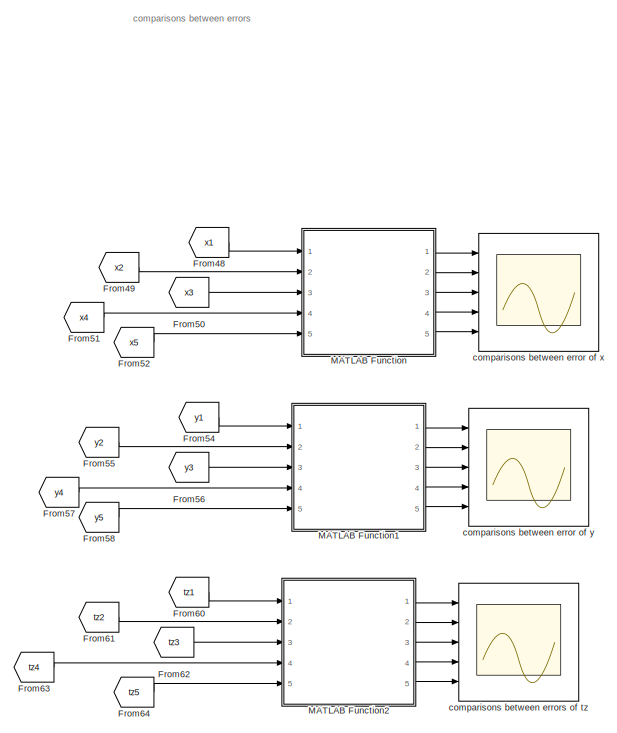
[diagram: root canvas - part 1/5, top left region]
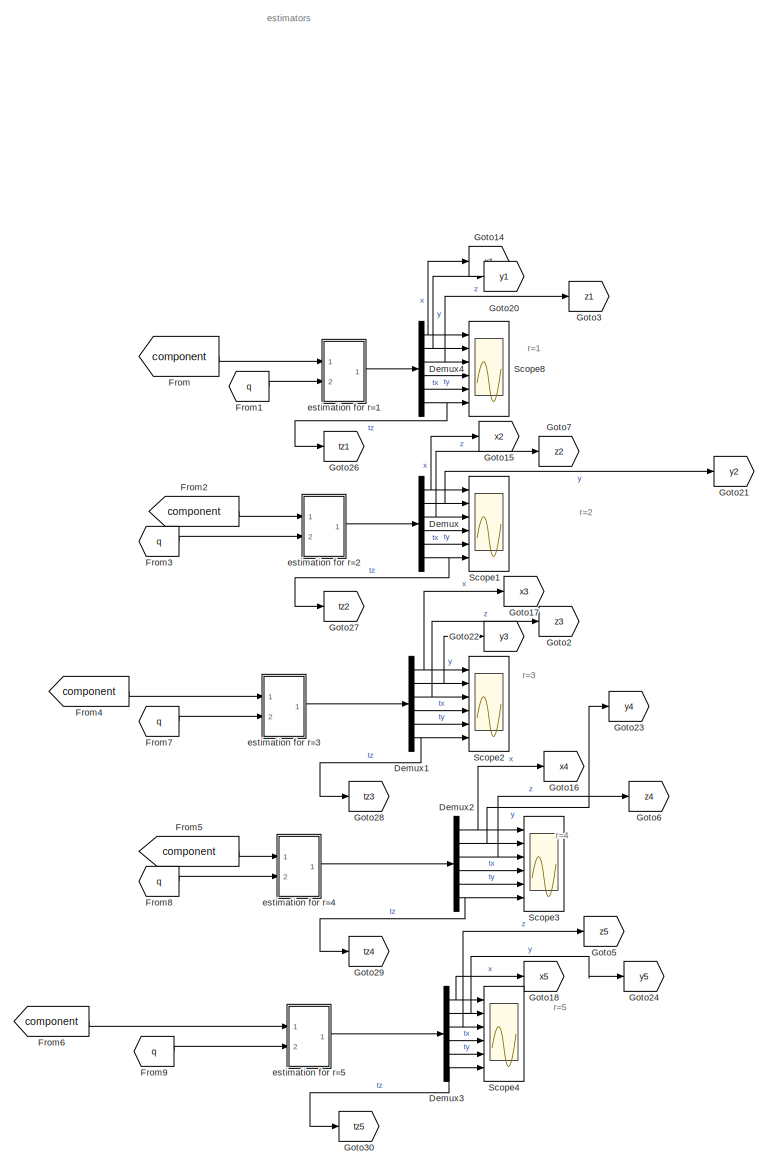
[diagram: root canvas - part 2/5, center side, full height]
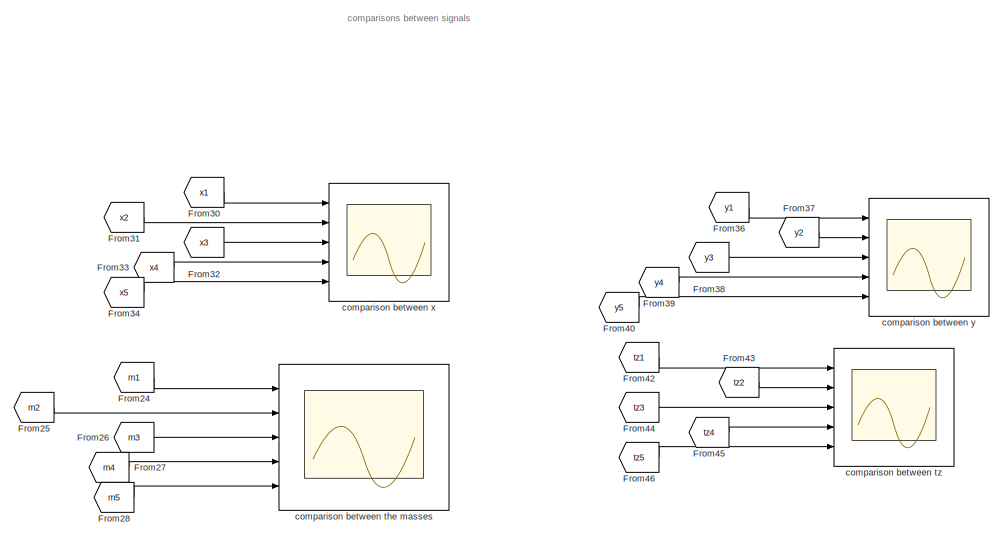
[diagram: root canvas - part 3/5, top center region]
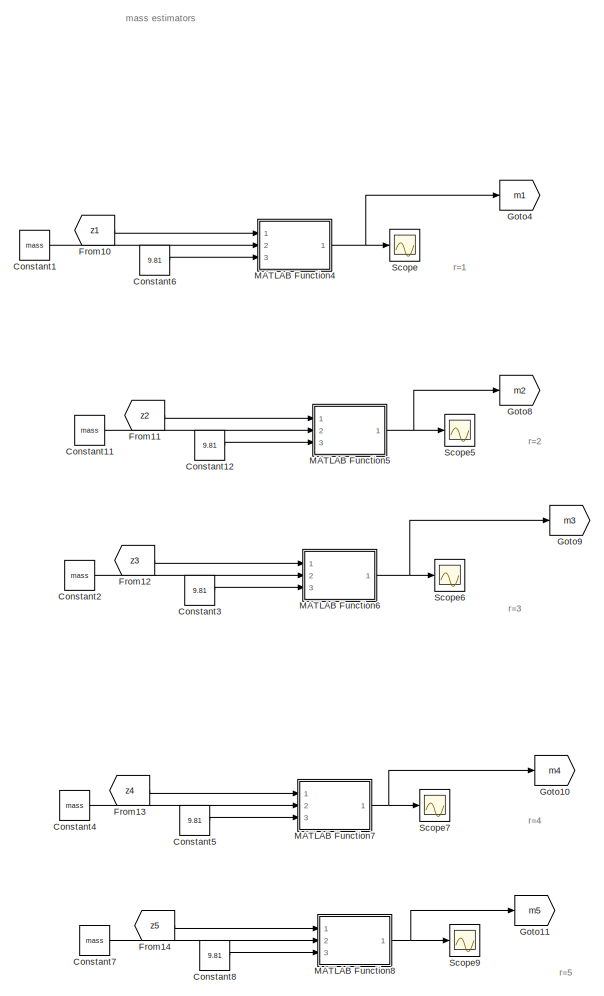
[diagram: root canvas - part 4/5, right side, full height]
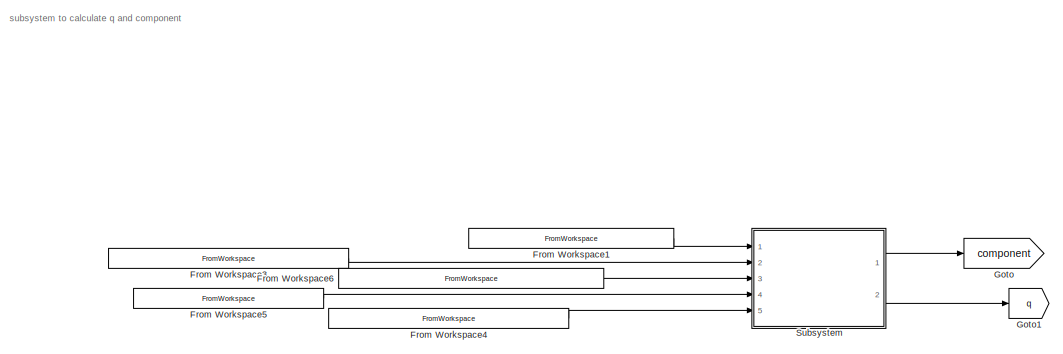
[diagram: root canvas - part 5/5, bottom center region]
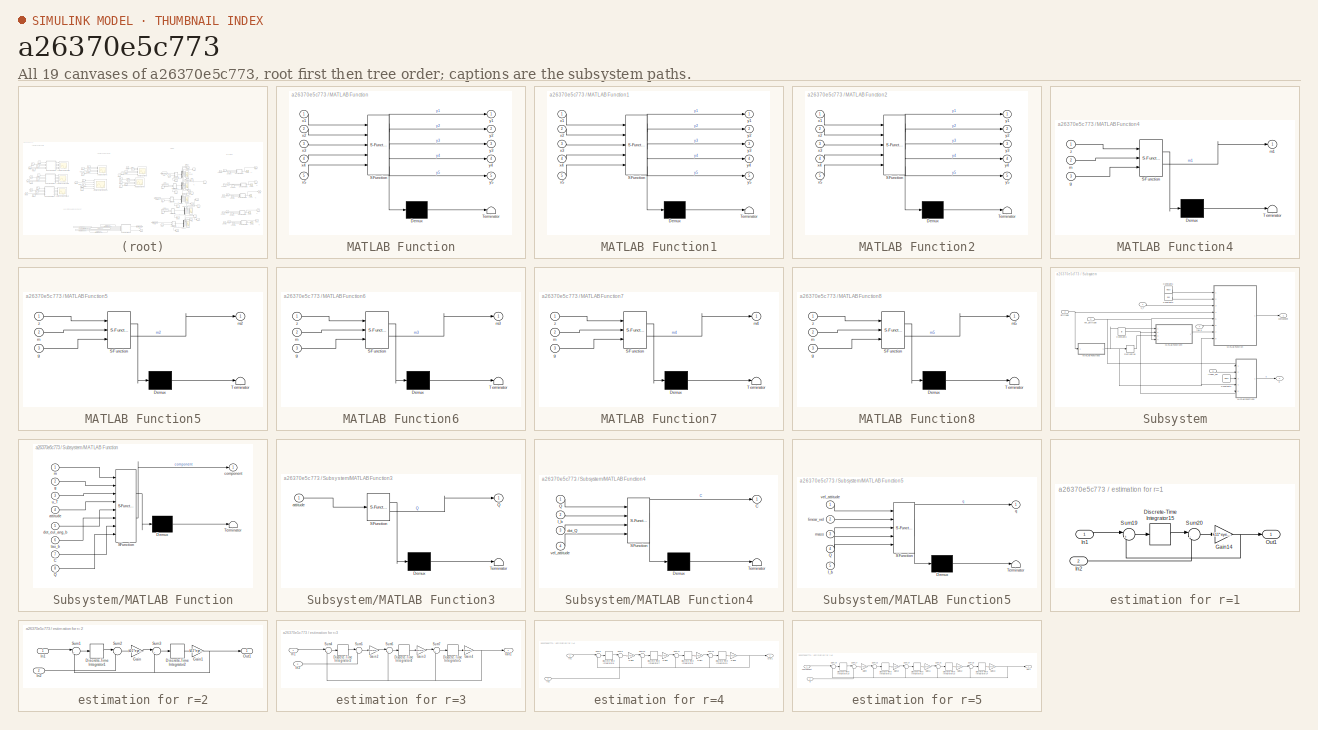
[diagram: thumbnail index - all 19 canvases of the model, root first then tree order]
MODEL slx_a26370e5c773
KIND model
CONFIG AbsTol = auto
CONFIG EnableMultiTasking = off
CONFIG FixedStep = auto
CONFIG MaxStep = auto
CONFIG MinStep = auto
CONFIG RelTol = 1e-3
CONFIG SampleTimeConstraint = Unconstrained
CONFIG SolverName = VariableStepAuto
CONFIG StartTime = 0.0
CONFIG StopTime = 30
BLOCK [Constant] Constant1
  Value = mass
BLOCK [Constant] Constant11
  Value = mass
BLOCK [Constant] Constant12
  Value = 9.81
BLOCK [Constant] Constant2
  Value = mass
BLOCK [Constant] Constant3
  Value = 9.81
BLOCK [Constant] Constant4
  Value = mass
BLOCK [Constant] Constant5
  Value = 9.81
BLOCK [Constant] Constant6
  Value = 9.81
BLOCK [Constant] Constant7
  Value = mass
BLOCK [Constant] Constant8
  Value = 9.81
BLOCK [Demux] Demux
  Outputs = 6
  Ports = [1, 6]
BLOCK [Demux] Demux1
  Outputs = 6
  Ports = [1, 6]
BLOCK [Demux] Demux2
  Outputs = 6
  Ports = [1, 6]
BLOCK [Demux] Demux3
  Outputs = 6
  Ports = [1, 6]
BLOCK [Demux] Demux4
  Outputs = 6
  Ports = [1, 6]
BLOCK [From] From
  GotoTag = component
BLOCK [FromWorkspace] From Workspace1
  SampleTime = 0.001
  VariableName = thrust
BLOCK [FromWorkspace] From Workspace3
  SampleTime = 0.001
  VariableName = attitude
BLOCK [FromWorkspace] From Workspace4
  SampleTime = 0.001
  VariableName = linear_vel
BLOCK [FromWorkspace] From Workspace5
  SampleTime = 0.001
  VariableName = tau
BLOCK [FromWorkspace] From Workspace6
  SampleTime = 0.001
  VariableName = attitude_vel
BLOCK [From] From1
  GotoTag = q
BLOCK [From] From10
  GotoTag = z1
BLOCK [From] From11
  GotoTag = z2
BLOCK [From] From12
  GotoTag = z3
BLOCK [From] From13
  GotoTag = z4
BLOCK [From] From14
  GotoTag = z5
BLOCK [From] From2
  GotoTag = component
BLOCK [From] From24
  GotoTag = m1
BLOCK [From] From25
  GotoTag = m2
BLOCK [From] From26
  GotoTag = m3
BLOCK [From] From27
  GotoTag = m4
BLOCK [From] From28
  GotoTag = m5
BLOCK [From] From3
  GotoTag = q
BLOCK [From] From30
  GotoTag = x1
BLOCK [From] From31
  GotoTag = x2
BLOCK [From] From32
  GotoTag = x3
BLOCK [From] From33
  GotoTag = x4
BLOCK [From] From34
  GotoTag = x5
BLOCK [From] From36
  GotoTag = y1
BLOCK [From] From37
  GotoTag = y2
BLOCK [From] From38
  GotoTag = y3
BLOCK [From] From39
  GotoTag = y4
BLOCK [From] From4
  GotoTag = component
BLOCK [From] From40
  GotoTag = y5
BLOCK [From] From42
  GotoTag = tz1
BLOCK [From] From43
  GotoTag = tz2
BLOCK [From] From44
  GotoTag = tz3
BLOCK [From] From45
  GotoTag = tz4
BLOCK [From] From46
  GotoTag = tz5
BLOCK [From] From48
  GotoTag = x1
BLOCK [From] From49
  GotoTag = x2
BLOCK [From] From5
  GotoTag = component
BLOCK [From] From50
  GotoTag = x3
BLOCK [From] From51
  GotoTag = x4
BLOCK [From] From52
  GotoTag = x5
BLOCK [From] From54
  GotoTag = y1
BLOCK [From] From55
  GotoTag = y2
BLOCK [From] From56
  GotoTag = y3
BLOCK [From] From57
  GotoTag = y4
BLOCK [From] From58
  GotoTag = y5
BLOCK [From] From6
  GotoTag = component
BLOCK [From] From60
  GotoTag = tz1
BLOCK [From] From61
  GotoTag = tz2
BLOCK [From] From62
  GotoTag = tz3
BLOCK [From] From63
  GotoTag = tz4
BLOCK [From] From64
  GotoTag = tz5
BLOCK [From] From7
  GotoTag = q
BLOCK [From] From8
  GotoTag = q
BLOCK [From] From9
  GotoTag = q
BLOCK [Goto] Goto
  GotoTag = component
BLOCK [Goto] Goto1
  GotoTag = q
BLOCK [Goto] Goto10
  GotoTag = m4
BLOCK [Goto] Goto11
  GotoTag = m5
BLOCK [Goto] Goto14
  GotoTag = x1
BLOCK [Goto] Goto15
  GotoTag = x2
BLOCK [Goto] Goto16
  GotoTag = x4
BLOCK [Goto] Goto17
  GotoTag = x3
BLOCK [Goto] Goto18
  GotoTag = x5
BLOCK [Goto] Goto2
  GotoTag = z3
BLOCK [Goto] Goto20
  GotoTag = y1
BLOCK [Goto] Goto21
  GotoTag = y2
BLOCK [Goto] Goto22
  GotoTag = y3
BLOCK [Goto] Goto23
  GotoTag = y4
BLOCK [Goto] Goto24
  GotoTag = y5
BLOCK [Goto] Goto26
  GotoTag = tz1
BLOCK [Goto] Goto27
  GotoTag = tz2
BLOCK [Goto] Goto28
  GotoTag = tz3
BLOCK [Goto] Goto29
  GotoTag = tz4
BLOCK [Goto] Goto3
  GotoTag = z1
BLOCK [Goto] Goto30
  GotoTag = tz5
BLOCK [Goto] Goto4
  GotoTag = m1
BLOCK [Goto] Goto5
  GotoTag = z5
BLOCK [Goto] Goto6
  GotoTag = z4
BLOCK [Goto] Goto7
  GotoTag = z2
BLOCK [Goto] Goto8
  GotoTag = m2
BLOCK [Goto] Goto9
  GotoTag = m3
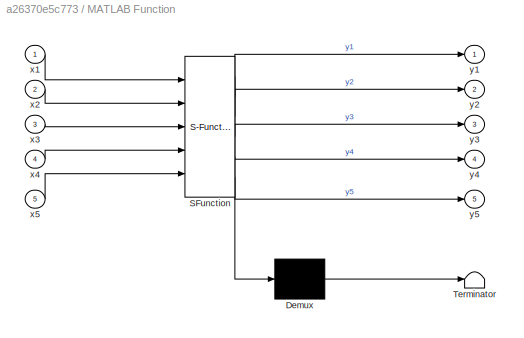
BLOCK [SubSystem] MATLAB Function
  ErrorFcn = Stateflow.Translate.translate
  PermitHierarchicalResolution = ExplicitOnly
  Ports = [5, 5]
  RequestExecContextInheritance = off
  SFBlockType = MATLAB Function
  TreatAsAtomicUnit = on
BLOCK [Demux] MATLAB Function/ Demux 
  Outputs = 1
  Ports = [1, 1]
BLOCK [S-Function] MATLAB Function/ SFunction 
  EnableBusSupport = on
  FunctionName = sf_sfun
  PortCounts = [5 6]
  Ports = [5, 6]
  SFcnIsStateOwnerBlock = off
  SFunctionDeploymentMode = off
  Tag = Stateflow S-Function 8
BLOCK [Terminator] MATLAB Function/ Terminator 
BLOCK [Inport] MATLAB Function/x1
BLOCK [Inport] MATLAB Function/x2
  Port = 2
BLOCK [Inport] MATLAB Function/x3
  Port = 3
BLOCK [Inport] MATLAB Function/x4
  Port = 4
BLOCK [Inport] MATLAB Function/x5
  Port = 5
BLOCK [Outport] MATLAB Function/y1
BLOCK [Outport] MATLAB Function/y2
  Port = 2
BLOCK [Outport] MATLAB Function/y3
  Port = 3
BLOCK [Outport] MATLAB Function/y4
  Port = 4
BLOCK [Outport] MATLAB Function/y5
  Port = 5
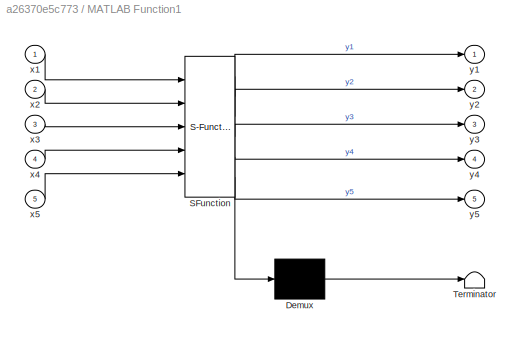
BLOCK [SubSystem] MATLAB Function1
  ErrorFcn = Stateflow.Translate.translate
  PermitHierarchicalResolution = ExplicitOnly
  Ports = [5, 5]
  RequestExecContextInheritance = off
  SFBlockType = MATLAB Function
  TreatAsAtomicUnit = on
BLOCK [Demux] MATLAB Function1/ Demux 
  Outputs = 1
  Ports = [1, 1]
BLOCK [S-Function] MATLAB Function1/ SFunction 
  EnableBusSupport = on
  FunctionName = sf_sfun
  PortCounts = [5 6]
  Ports = [5, 6]
  SFcnIsStateOwnerBlock = off
  SFunctionDeploymentMode = off
  Tag = Stateflow S-Function 9
BLOCK [Terminator] MATLAB Function1/ Terminator 
BLOCK [Inport] MATLAB Function1/x1
BLOCK [Inport] MATLAB Function1/x2
  Port = 2
BLOCK [Inport] MATLAB Function1/x3
  Port = 3
BLOCK [Inport] MATLAB Function1/x4
  Port = 4
BLOCK [Inport] MATLAB Function1/x5
  Port = 5
BLOCK [Outport] MATLAB Function1/y1
BLOCK [Outport] MATLAB Function1/y2
  Port = 2
BLOCK [Outport] MATLAB Function1/y3
  Port = 3
BLOCK [Outport] MATLAB Function1/y4
  Port = 4
BLOCK [Outport] MATLAB Function1/y5
  Port = 5
BLOCK [SubSystem] MATLAB Function2
  ErrorFcn = Stateflow.Translate.translate
  PermitHierarchicalResolution = ExplicitOnly
  Ports = [5, 5]
  RequestExecContextInheritance = off
  SFBlockType = MATLAB Function
  TreatAsAtomicUnit = on
BLOCK [Demux] MATLAB Function2/ Demux 
  Outputs = 1
  Ports = [1, 1]
BLOCK [S-Function] MATLAB Function2/ SFunction 
  EnableBusSupport = on
  FunctionName = sf_sfun
  PortCounts = [5 6]
  Ports = [5, 6]
  SFcnIsStateOwnerBlock = off
  SFunctionDeploymentMode = off
  Tag = Stateflow S-Function 13
BLOCK [Terminator] MATLAB Function2/ Terminator 
BLOCK [Inport] MATLAB Function2/x1
BLOCK [Inport] MATLAB Function2/x2
  Port = 2
BLOCK [Inport] MATLAB Function2/x3
  Port = 3
BLOCK [Inport] MATLAB Function2/x4
  Port = 4
BLOCK [Inport] MATLAB Function2/x5
  Port = 5
BLOCK [Outport] MATLAB Function2/y1
BLOCK [Outport] MATLAB Function2/y2
  Port = 2
BLOCK [Outport] MATLAB Function2/y3
  Port = 3
BLOCK [Outport] MATLAB Function2/y4
  Port = 4
BLOCK [Outport] MATLAB Function2/y5
  Port = 5
BLOCK [SubSystem] MATLAB Function4
  ErrorFcn = Stateflow.Translate.translate
  PermitHierarchicalResolution = ExplicitOnly
  Ports = [3, 1]
  RequestExecContextInheritance = off
  SFBlockType = MATLAB Function
  TreatAsAtomicUnit = on
BLOCK [Demux] MATLAB Function4/ Demux 
  Outputs = 1
  Ports = [1, 1]
BLOCK [S-Function] MATLAB Function4/ SFunction 
  EnableBusSupport = on
  FunctionName = sf_sfun
  PortCounts = [3 2]
  Ports = [3, 2]
  SFcnIsStateOwnerBlock = off
  SFunctionDeploymentMode = off
  Tag = Stateflow S-Function 2
BLOCK [Terminator] MATLAB Function4/ Terminator 
BLOCK [Inport] MATLAB Function4/g
  Port = 3
BLOCK [Inport] MATLAB Function4/m
  Port = 2
BLOCK [Outport] MATLAB Function4/m1
BLOCK [Inport] MATLAB Function4/z
BLOCK [SubSystem] MATLAB Function5
  ErrorFcn = Stateflow.Translate.translate
  PermitHierarchicalResolution = ExplicitOnly
  Ports = [3, 1]
  RequestExecContextInheritance = off
  SFBlockType = MATLAB Function
  TreatAsAtomicUnit = on
BLOCK [Demux] MATLAB Function5/ Demux 
  Outputs = 1
  Ports = [1, 1]
BLOCK [S-Function] MATLAB Function5/ SFunction 
  EnableBusSupport = on
  FunctionName = sf_sfun
  PortCounts = [3 2]
  Ports = [3, 2]
  SFcnIsStateOwnerBlock = off
  SFunctionDeploymentMode = off
  Tag = Stateflow S-Function 1
BLOCK [Terminator] MATLAB Function5/ Terminator 
BLOCK [Inport] MATLAB Function5/g
  Port = 3
BLOCK [Inport] MATLAB Function5/m
  Port = 2
BLOCK [Outport] MATLAB Function5/m2
BLOCK [Inport] MATLAB Function5/z
BLOCK [SubSystem] MATLAB Function6
  ErrorFcn = Stateflow.Translate.translate
  PermitHierarchicalResolution = ExplicitOnly
  Ports = [3, 1]
  RequestExecContextInheritance = off
  SFBlockType = MATLAB Function
  TreatAsAtomicUnit = on
BLOCK [Demux] MATLAB Function6/ Demux 
  Outputs = 1
  Ports = [1, 1]
BLOCK [S-Function] MATLAB Function6/ SFunction 
  EnableBusSupport = on
  FunctionName = sf_sfun
  PortCounts = [3 2]
  Ports = [3, 2]
  SFcnIsStateOwnerBlock = off
  SFunctionDeploymentMode = off
  Tag = Stateflow S-Function 4
BLOCK [Terminator] MATLAB Function6/ Terminator 
BLOCK [Inport] MATLAB Function6/g
  Port = 3
BLOCK [Inport] MATLAB Function6/m
  Port = 2
BLOCK [Outport] MATLAB Function6/m3
BLOCK [Inport] MATLAB Function6/z
BLOCK [SubSystem] MATLAB Function7
  ErrorFcn = Stateflow.Translate.translate
  PermitHierarchicalResolution = ExplicitOnly
  Ports = [3, 1]
  RequestExecContextInheritance = off
  SFBlockType = MATLAB Function
  TreatAsAtomicUnit = on
BLOCK [Demux] MATLAB Function7/ Demux 
  Outputs = 1
  Ports = [1, 1]
BLOCK [S-Function] MATLAB Function7/ SFunction 
  EnableBusSupport = on
  FunctionName = sf_sfun
  PortCounts = [3 2]
  Ports = [3, 2]
  SFcnIsStateOwnerBlock = off
  SFunctionDeploymentMode = off
  Tag = Stateflow S-Function 5
BLOCK [Terminator] MATLAB Function7/ Terminator 
BLOCK [Inport] MATLAB Function7/g
  Port = 3
BLOCK [Inport] MATLAB Function7/m
  Port = 2
BLOCK [Outport] MATLAB Function7/m4
BLOCK [Inport] MATLAB Function7/z
BLOCK [SubSystem] MATLAB Function8
  ErrorFcn = Stateflow.Translate.translate
  PermitHierarchicalResolution = ExplicitOnly
  Ports = [3, 1]
  RequestExecContextInheritance = off
  SFBlockType = MATLAB Function
  TreatAsAtomicUnit = on
BLOCK [Demux] MATLAB Function8/ Demux 
  Outputs = 1
  Ports = [1, 1]
BLOCK [S-Function] MATLAB Function8/ SFunction 
  EnableBusSupport = on
  FunctionName = sf_sfun
  PortCounts = [3 2]
  Ports = [3, 2]
  SFcnIsStateOwnerBlock = off
  SFunctionDeploymentMode = off
  Tag = Stateflow S-Function 6
BLOCK [Terminator] MATLAB Function8/ Terminator 
BLOCK [Inport] MATLAB Function8/g
  Port = 3
BLOCK [Inport] MATLAB Function8/m
  Port = 2
BLOCK [Outport] MATLAB Function8/m5
BLOCK [Inport] MATLAB Function8/z
BLOCK [Scope] Scope
  Floating = off
  NumInputPorts = 1
  Ports = [1]
  ScopeSpecificationString = Simulink.scopes.TimeScopeBlockCfg('CurrentConfiguration', extmgr.ConfigurationSet(extmgr.Configuration('Core','General UI',true,'FigureColor',[1 1 1]),extmgr.Configuration('Core','Source UI',true),extmgr.Configuration('Sources','WiredSimulink',true,'DataLoggingVariableName','ScopeData1'),extmgr.Configuration('Visuals','Time Domain',true,'SerializedDisplays',{struct('MinYLimReal','1.081','MaxYLimRe...<+1557ch>
BLOCK [Scope] Scope1
  Floating = off
  NumInputPorts = 6
  Ports = [6]
  ScopeSpecificationString = Simulink.scopes.TimeScopeBlockCfg('CurrentConfiguration', extmgr.ConfigurationSet(extmgr.Configuration('Core','General UI',true,'FigureColor',[1 1 1]),extmgr.Configuration('Core','Source UI',true),extmgr.Configuration('Sources','WiredSimulink',true,'DataLoggingVariableName','ScopeData1'),extmgr.Configuration('Visuals','Time Domain',true,'SerializedDisplays',{struct('MinYLimReal','-0.13111','MaxYLi...<+5587ch>
BLOCK [Scope] Scope2
  Floating = off
  NumInputPorts = 6
  Ports = [6]
  ScopeSpecificationString = Simulink.scopes.TimeScopeBlockCfg('CurrentConfiguration', extmgr.ConfigurationSet(extmgr.Configuration('Core','General UI',true,'FigureColor',[1 1 1]),extmgr.Configuration('Core','Source UI',true),extmgr.Configuration('Sources','WiredSimulink',true,'DataLoggingVariableName','ScopeData5'),extmgr.Configuration('Visuals','Time Domain',true,'SerializedDisplays',{struct('MinYLimReal','-0.13978','MaxYLi...<+5592ch>
BLOCK [Scope] Scope3
  Floating = off
  NumInputPorts = 6
  Ports = [6]
  ScopeSpecificationString = Simulink.scopes.TimeScopeBlockCfg('CurrentConfiguration', extmgr.ConfigurationSet(extmgr.Configuration('Core','General UI',true,'FigureColor',[1 1 1]),extmgr.Configuration('Core','Source UI',true),extmgr.Configuration('Sources','WiredSimulink',true,'DataLoggingVariableName','ScopeData6'),extmgr.Configuration('Visuals','Time Domain',true,'SerializedDisplays',{struct('MinYLimReal','-0.13874','MaxYLi...<+5586ch>
BLOCK [Scope] Scope4
  Floating = off
  NumInputPorts = 6
  Ports = [6]
  ScopeSpecificationString = Simulink.scopes.TimeScopeBlockCfg('CurrentConfiguration', extmgr.ConfigurationSet(extmgr.Configuration('Core','General UI',true,'FigureColor',[1 1 1]),extmgr.Configuration('Core','Source UI',true),extmgr.Configuration('Sources','WiredSimulink',true,'DataLoggingVariableName','ScopeData7'),extmgr.Configuration('Visuals','Time Domain',true,'SerializedDisplays',{struct('MinYLimReal','-0.13111','MaxYLi...<+5579ch>
BLOCK [Scope] Scope5
  Floating = off
  NumInputPorts = 1
  Ports = [1]
  ScopeSpecificationString = Simulink.scopes.TimeScopeBlockCfg('CurrentConfiguration', extmgr.ConfigurationSet(extmgr.Configuration('Core','General UI',true,'FigureColor',[1 1 1]),extmgr.Configuration('Core','Source UI',true),extmgr.Configuration('Sources','WiredSimulink',true,'DataLoggingVariableName','ScopeData2'),extmgr.Configuration('Visuals','Time Domain',true,'SerializedDisplays',{struct('MinYLimReal','1.0802','MaxYLimR...<+1536ch>
BLOCK [Scope] Scope6
  Floating = off
  NumInputPorts = 1
  Ports = [1]
  ScopeSpecificationString = Simulink.scopes.TimeScopeBlockCfg('CurrentConfiguration', extmgr.ConfigurationSet(extmgr.Configuration('Core','General UI',true,'FigureColor',[1 1 1]),extmgr.Configuration('Core','Source UI',true),extmgr.Configuration('Sources','WiredSimulink',true,'DataLoggingVariableName','ScopeData3'),extmgr.Configuration('Visuals','Time Domain',true,'SerializedDisplays',{struct('MinYLimReal','1.08046','MaxYLim...<+1540ch>
BLOCK [Scope] Scope7
  Floating = off
  NumInputPorts = 1
  Ports = [1]
  ScopeSpecificationString = Simulink.scopes.TimeScopeBlockCfg('CurrentConfiguration', extmgr.ConfigurationSet(extmgr.Configuration('Core','General UI',true,'FigureColor',[1 1 1]),extmgr.Configuration('Core','Source UI',true),extmgr.Configuration('Sources','WiredSimulink',true,'DataLoggingVariableName','ScopeData4'),extmgr.Configuration('Visuals','Time Domain',true,'SerializedDisplays',{struct('MinYLimReal','1.08043','MaxYLim...<+1540ch>
BLOCK [Scope] Scope8
  Floating = off
  NumInputPorts = 6
  Ports = [6]
  ScopeSpecificationString = Simulink.scopes.TimeScopeBlockCfg('CurrentConfiguration', extmgr.ConfigurationSet(extmgr.Configuration('Core','General UI',true,'FigureColor',[1 1 1]),extmgr.Configuration('Core','Source UI',true),extmgr.Configuration('Sources','WiredSimulink',true,'DataLoggingVariableName','ScopeData11'),extmgr.Configuration('Visuals','Time Domain',true,'SerializedDisplays',{struct('MinYLimReal','-0.13767','MaxYL...<+5588ch>
BLOCK [Scope] Scope9
  Floating = off
  NumInputPorts = 1
  Ports = [1]
  ScopeSpecificationString = Simulink.scopes.TimeScopeBlockCfg('CurrentConfiguration', extmgr.ConfigurationSet(extmgr.Configuration('Core','General UI',true,'FigureColor',[1 1 1]),extmgr.Configuration('Core','Source UI',true),extmgr.Configuration('Sources','WiredSimulink',true,'DataLoggingVariableName','ScopeData5'),extmgr.Configuration('Visuals','Time Domain',true,'SerializedDisplays',{struct('MinYLimReal','1.08039','MaxYLim...<+1540ch>
BLOCK [SubSystem] Subsystem
  Ports = [5, 2]
  RequestExecContextInheritance = off
BLOCK [Constant] Subsystem/Constant1
  Value = mass
BLOCK [Constant] Subsystem/Constant2
  Value = 9.81
BLOCK [Constant] Subsystem/Constant3
  Value = Ib
BLOCK [Constant] Subsystem/Constant4
  Value = mass
BLOCK [Derivative] Subsystem/Derivative
BLOCK [SubSystem] Subsystem/MATLAB Function
  ErrorFcn = Stateflow.Translate.translate
  PermitHierarchicalResolution = ExplicitOnly
  Ports = [8, 1]
  RequestExecContextInheritance = off
  SFBlockType = MATLAB Function
  TreatAsAtomicUnit = on
BLOCK [Demux] Subsystem/MATLAB Function/ Demux 
  Outputs = 1
  Ports = [1, 1]
BLOCK [S-Function] Subsystem/MATLAB Function/ SFunction 
  EnableBusSupport = on
  FunctionName = sf_sfun
  PortCounts = [8 2]
  Ports = [8, 2]
  SFcnIsStateOwnerBlock = off
  SFunctionDeploymentMode = off
  Tag = Stateflow S-Function 3
BLOCK [Terminator] Subsystem/MATLAB Function/ Terminator 
BLOCK [Inport] Subsystem/MATLAB Function/C
  Port = 7
BLOCK [Inport] Subsystem/MATLAB Function/Q
  Port = 8
BLOCK [Inport] Subsystem/MATLAB Function/attitude
  Port = 4
BLOCK [Outport] Subsystem/MATLAB Function/component
BLOCK [Inport] Subsystem/MATLAB Function/dot_eul_ang_b
  Port = 5
BLOCK [Inport] Subsystem/MATLAB Function/g
  Port = 2
BLOCK [Inport] Subsystem/MATLAB Function/m
BLOCK [Inport] Subsystem/MATLAB Function/tau_b
  Port = 6
BLOCK [Inport] Subsystem/MATLAB Function/u_T
  Port = 3
BLOCK [SubSystem] Subsystem/MATLAB Function3
  ErrorFcn = Stateflow.Translate.translate
  PermitHierarchicalResolution = ExplicitOnly
  Ports = [1, 1]
  RequestExecContextInheritance = off
  SFBlockType = MATLAB Function
  TreatAsAtomicUnit = on
BLOCK [Demux] Subsystem/MATLAB Function3/ Demux 
  Outputs = 1
  Ports = [1, 1]
BLOCK [S-Function] Subsystem/MATLAB Function3/ SFunction 
  EnableBusSupport = on
  FunctionName = sf_sfun
  PortCounts = [1 2]
  Ports = [1, 2]
  SFcnIsStateOwnerBlock = off
  SFunctionDeploymentMode = off
  Tag = Stateflow S-Function 10
BLOCK [Terminator] Subsystem/MATLAB Function3/ Terminator 
BLOCK [Outport] Subsystem/MATLAB Function3/Q
BLOCK [Inport] Subsystem/MATLAB Function3/attitude
BLOCK [SubSystem] Subsystem/MATLAB Function4
  ErrorFcn = Stateflow.Translate.translate
  PermitHierarchicalResolution = ExplicitOnly
  Ports = [4, 1]
  RequestExecContextInheritance = off
  SFBlockType = MATLAB Function
  TreatAsAtomicUnit = on
BLOCK [Demux] Subsystem/MATLAB Function4/ Demux 
  Outputs = 1
  Ports = [1, 1]
BLOCK [S-Function] Subsystem/MATLAB Function4/ SFunction 
  EnableBusSupport = on
  FunctionName = sf_sfun
  PortCounts = [4 2]
  Ports = [4, 2]
  SFcnIsStateOwnerBlock = off
  SFunctionDeploymentMode = off
  Tag = Stateflow S-Function 11
BLOCK [Terminator] Subsystem/MATLAB Function4/ Terminator 
BLOCK [Outport] Subsystem/MATLAB Function4/C
BLOCK [Inport] Subsystem/MATLAB Function4/I_b
  Port = 2
BLOCK [Inport] Subsystem/MATLAB Function4/Q
BLOCK [Inport] Subsystem/MATLAB Function4/dot_Q
  Port = 3
BLOCK [Inport] Subsystem/MATLAB Function4/vel_attitude
  Port = 4
BLOCK [SubSystem] Subsystem/MATLAB Function5
  ErrorFcn = Stateflow.Translate.translate
  PermitHierarchicalResolution = ExplicitOnly
  Ports = [5, 1]
  RequestExecContextInheritance = off
  SFBlockType = MATLAB Function
  TreatAsAtomicUnit = on
BLOCK [Demux] Subsystem/MATLAB Function5/ Demux 
  Outputs = 1
  Ports = [1, 1]
BLOCK [S-Function] Subsystem/MATLAB Function5/ SFunction 
  EnableBusSupport = on
  FunctionName = sf_sfun
  PortCounts = [5 2]
  Ports = [5, 2]
  SFcnIsStateOwnerBlock = off
  SFunctionDeploymentMode = off
  Tag = Stateflow S-Function 12
BLOCK [Terminator] Subsystem/MATLAB Function5/ Terminator 
BLOCK [Inport] Subsystem/MATLAB Function5/I_b
  Port = 5
BLOCK [Inport] Subsystem/MATLAB Function5/Q
  Port = 4
BLOCK [Inport] Subsystem/MATLAB Function5/linear_vel
  Port = 2
BLOCK [Inport] Subsystem/MATLAB Function5/mass
  Port = 3
BLOCK [Outport] Subsystem/MATLAB Function5/q
BLOCK [Inport] Subsystem/MATLAB Function5/vel_attitude
BLOCK [Inport] Subsystem/attitude
  Port = 2
BLOCK [Outport] Subsystem/component
BLOCK [Inport] Subsystem/linear_vel
  Port = 5
BLOCK [Outport] Subsystem/q
  Port = 2
BLOCK [Inport] Subsystem/tau_b
  Port = 4
BLOCK [Inport] Subsystem/u_T
BLOCK [Inport] Subsystem/vel_attitude
  Port = 3
BLOCK [Scope] comparison between  tz
  Floating = off
  NumInputPorts = 5
  Ports = [5]
  ScopeSpecificationString = Simulink.scopes.TimeScopeBlockCfg('CurrentConfiguration', extmgr.ConfigurationSet(extmgr.Configuration('Core','General UI',true,'FigureColor',[1 1 1]),extmgr.Configuration('Core','Source UI',true),extmgr.Configuration('Sources','WiredSimulink',true,'DataLoggingVariableName','ScopeData15'),extmgr.Configuration('Visuals','Time Domain',true,'SerializedDisplays',{struct('MinYLimReal','-0.02527','MaxYL...<+2388ch>
BLOCK [Scope] comparison between  x
  Floating = off
  NumInputPorts = 5
  Ports = [5]
  ScopeSpecificationString = Simulink.scopes.TimeScopeBlockCfg('CurrentConfiguration', extmgr.ConfigurationSet(extmgr.Configuration('Core','General UI',true,'FigureColor',[1 1 1]),extmgr.Configuration('Core','Source UI',true),extmgr.Configuration('Sources','WiredSimulink',true,'DataLoggingVariableName','ScopeData13'),extmgr.Configuration('Visuals','Time Domain',true,'SerializedDisplays',{struct('MinYLimReal','-0.13981','MaxYL...<+2300ch>
BLOCK [Scope] comparison between  y
  Floating = off
  NumInputPorts = 5
  Ports = [5]
  ScopeSpecificationString = Simulink.scopes.TimeScopeBlockCfg('CurrentConfiguration', extmgr.ConfigurationSet(extmgr.Configuration('Core','General UI',true,'FigureColor',[1 1 1]),extmgr.Configuration('Core','Source UI',true),extmgr.Configuration('Sources','WiredSimulink',true,'DataLoggingVariableName','ScopeData14'),extmgr.Configuration('Visuals','Time Domain',true,'SerializedDisplays',{struct('MinYLimReal','-0.13535','MaxYL...<+2377ch>
BLOCK [Scope] comparison between the masses
  Floating = off
  NumInputPorts = 5
  Ports = [5]
  ScopeSpecificationString = Simulink.scopes.TimeScopeBlockCfg('CurrentConfiguration', extmgr.ConfigurationSet(extmgr.Configuration('Core','General UI',true,'FigureColor',[1 1 1]),extmgr.Configuration('Core','Source UI',true),extmgr.Configuration('Sources','WiredSimulink',true),extmgr.Configuration('Visuals','Time Domain',true,'SerializedDisplays',{struct('MinYLimReal','1.08013','MaxYLimReal','1.2782','YLabelReal','','MinYLim...<+2137ch>
BLOCK [Scope] comparisons between  error of x
  Floating = off
  NumInputPorts = 5
  Ports = [5]
  ScopeSpecificationString = Simulink.scopes.TimeScopeBlockCfg('CurrentConfiguration', extmgr.ConfigurationSet(extmgr.Configuration('Core','General UI',true,'FigureColor',[1 1 1]),extmgr.Configuration('Core','Source UI',true),extmgr.Configuration('Sources','WiredSimulink',true,'DataLoggingVariableName','ScopeData16'),extmgr.Configuration('Visuals','Time Domain',true,'SerializedDisplays',{struct('MinYLimReal','-0.2489','MaxYLi...<+2368ch>
BLOCK [Scope] comparisons between  error of y
  Floating = off
  NumInputPorts = 5
  Ports = [5]
  ScopeSpecificationString = Simulink.scopes.TimeScopeBlockCfg('CurrentConfiguration', extmgr.ConfigurationSet(extmgr.Configuration('Core','General UI',true,'FigureColor',[1 1 1]),extmgr.Configuration('Core','Source UI',true),extmgr.Configuration('Sources','WiredSimulink',true,'DataLoggingVariableName','ScopeData17'),extmgr.Configuration('Visuals','Time Domain',true,'SerializedDisplays',{struct('MinYLimReal','-0.20764','MaxYL...<+2370ch>
BLOCK [Scope] comparisons between  errors of tz
  Floating = off
  NumInputPorts = 5
  Ports = [5]
  ScopeSpecificationString = Simulink.scopes.TimeScopeBlockCfg('CurrentConfiguration', extmgr.ConfigurationSet(extmgr.Configuration('Core','General UI',true,'FigureColor',[1 1 1]),extmgr.Configuration('Core','Source UI',true),extmgr.Configuration('Sources','WiredSimulink',true,'DataLoggingVariableName','ScopeData18'),extmgr.Configuration('Visuals','Time Domain',true,'SerializedDisplays',{struct('MinYLimReal','-0.02335','MaxYL...<+2383ch>
BLOCK [SubSystem] estimation for r=1
  Ports = [2, 1]
  RequestExecContextInheritance = off
BLOCK [DiscreteIntegrator] estimation for r=1/Discrete-Time Integrator15
  ICPrevOutput = DiscIntNeverNeededParam
  ICPrevScaledInput = DiscIntNeverNeededParam
  InitialConditionSetting = Auto
  Ports = [1, 1]
  SampleTime = 0.001
BLOCK [Gain] estimation for r=1/Gain14
  Gain = k11*eye(6)
  Multiplication = Matrix(K*u)
BLOCK [Inport] estimation for r=1/In1
BLOCK [Inport] estimation for r=1/In2
  Port = 2
BLOCK [Outport] estimation for r=1/Out1
BLOCK [Sum] estimation for r=1/Sum19
  Inputs = |++
  Ports = [2, 1]
BLOCK [Sum] estimation for r=1/Sum20
  Inputs = |-+
  Ports = [2, 1]
BLOCK [SubSystem] estimation for r=2
  Ports = [2, 1]
  RequestExecContextInheritance = off
BLOCK [DiscreteIntegrator] estimation for r=2/Discrete-Time Integrator1
  ICPrevOutput = DiscIntNeverNeededParam
  ICPrevScaledInput = DiscIntNeverNeededParam
  InitialConditionSetting = Auto
  Ports = [1, 1]
  SampleTime = 0.001
BLOCK [DiscreteIntegrator] estimation for r=2/Discrete-Time Integrator2
  ICPrevOutput = DiscIntNeverNeededParam
  ICPrevScaledInput = DiscIntNeverNeededParam
  InitialConditionSetting = Auto
  Ports = [1, 1]
  SampleTime = 0.001
BLOCK [Gain] estimation for r=2/Gain
  Gain = k12*eye(6)
  Multiplication = Matrix(K*u)
BLOCK [Gain] estimation for r=2/Gain1
  Gain = k22*eye(6)
  Multiplication = Matrix(K*u)
BLOCK [Inport] estimation for r=2/In1
BLOCK [Inport] estimation for r=2/In2
  Port = 2
BLOCK [Outport] estimation for r=2/Out1
BLOCK [Sum] estimation for r=2/Sum1
  Inputs = |++
  Ports = [2, 1]
BLOCK [Sum] estimation for r=2/Sum2
  Inputs = |-+
  Ports = [2, 1]
BLOCK [Sum] estimation for r=2/Sum3
  Inputs = |+-
  Ports = [2, 1]
BLOCK [SubSystem] estimation for r=3
  Ports = [2, 1]
  RequestExecContextInheritance = off
BLOCK [DiscreteIntegrator] estimation for r=3/Discrete-Time Integrator3
  ICPrevOutput = DiscIntNeverNeededParam
  ICPrevScaledInput = DiscIntNeverNeededParam
  InitialCondition = 0.001
  InitialConditionSetting = Auto
  Ports = [1, 1]
  SampleTime = -1
BLOCK [DiscreteIntegrator] estimation for r=3/Discrete-Time Integrator4
  ICPrevOutput = DiscIntNeverNeededParam
  ICPrevScaledInput = DiscIntNeverNeededParam
  InitialConditionSetting = Auto
  Ports = [1, 1]
  SampleTime = 0.001
BLOCK [DiscreteIntegrator] estimation for r=3/Discrete-Time Integrator5
  ICPrevOutput = DiscIntNeverNeededParam
  ICPrevScaledInput = DiscIntNeverNeededParam
  InitialConditionSetting = Auto
  Ports = [1, 1]
  SampleTime = 0.001
BLOCK [Gain] estimation for r=3/Gain2
  Gain = k13*eye(6)
  Multiplication = Matrix(K*u)
BLOCK [Gain] estimation for r=3/Gain3
  Gain = k23*eye(6)
  Multiplication = Matrix(K*u)
BLOCK [Gain] estimation for r=3/Gain4
  Gain = k33*eye(6)
  Multiplication = Matrix(K*u)
BLOCK [Inport] estimation for r=3/In1
BLOCK [Inport] estimation for r=3/In2
  Port = 2
BLOCK [Outport] estimation for r=3/Out1
BLOCK [Sum] estimation for r=3/Sum4
  Inputs = |++
  Ports = [2, 1]
BLOCK [Sum] estimation for r=3/Sum5
  Inputs = |-+
  Ports = [2, 1]
BLOCK [Sum] estimation for r=3/Sum6
  Inputs = |+-
  Ports = [2, 1]
BLOCK [Sum] estimation for r=3/Sum7
  Inputs = |+-
  Ports = [2, 1]
BLOCK [SubSystem] estimation for r=4
  Ports = [2, 1]
  RequestExecContextInheritance = off
BLOCK [DiscreteIntegrator] estimation for r=4/Discrete-Time Integrator6
  ICPrevOutput = DiscIntNeverNeededParam
  ICPrevScaledInput = DiscIntNeverNeededParam
  InitialConditionSetting = Auto
  Ports = [1, 1]
  SampleTime = 0.001
BLOCK [DiscreteIntegrator] estimation for r=4/Discrete-Time Integrator7
  ICPrevOutput = DiscIntNeverNeededParam
  ICPrevScaledInput = DiscIntNeverNeededParam
  InitialConditionSetting = Auto
  Ports = [1, 1]
  SampleTime = 0.001
BLOCK [DiscreteIntegrator] estimation for r=4/Discrete-Time Integrator8
  ICPrevOutput = DiscIntNeverNeededParam
  ICPrevScaledInput = DiscIntNeverNeededParam
  InitialConditionSetting = Auto
  Ports = [1, 1]
  SampleTime = 0.001
BLOCK [DiscreteIntegrator] estimation for r=4/Discrete-Time Integrator9
  ICPrevOutput = DiscIntNeverNeededParam
  ICPrevScaledInput = DiscIntNeverNeededParam
  InitialConditionSetting = Auto
  Ports = [1, 1]
  SampleTime = 0.001
BLOCK [Gain] estimation for r=4/Gain5
  Gain = k14*eye(6)
  Multiplication = Matrix(K*u)
BLOCK [Gain] estimation for r=4/Gain6
  Gain = k24*eye(6)
  Multiplication = Matrix(K*u)
BLOCK [Gain] estimation for r=4/Gain7
  Gain = k34*eye(6)
  Multiplication = Matrix(K*u)
BLOCK [Gain] estimation for r=4/Gain8
  Gain = k44*eye(6)
  Multiplication = Matrix(K*u)
BLOCK [Inport] estimation for r=4/In1
BLOCK [Inport] estimation for r=4/In2
  Port = 2
BLOCK [Outport] estimation for r=4/Out1
BLOCK [Sum] estimation for r=4/Sum10
  Inputs = |+-
  Ports = [2, 1]
BLOCK [Sum] estimation for r=4/Sum11
  Inputs = |+-
  Ports = [2, 1]
BLOCK [Sum] estimation for r=4/Sum12
  Inputs = |+-
  Ports = [2, 1]
BLOCK [Sum] estimation for r=4/Sum8
  Inputs = |++
  Ports = [2, 1]
BLOCK [Sum] estimation for r=4/Sum9
  Inputs = |-+
  Ports = [2, 1]
BLOCK [SubSystem] estimation for r=5
  Ports = [2, 1]
  RequestExecContextInheritance = off
BLOCK [DiscreteIntegrator] estimation for r=5/Discrete-Time Integrator10
  ICPrevOutput = DiscIntNeverNeededParam
  ICPrevScaledInput = DiscIntNeverNeededParam
  InitialConditionSetting = Auto
  Ports = [1, 1]
  SampleTime = 0.001
BLOCK [DiscreteIntegrator] estimation for r=5/Discrete-Time Integrator11
  ICPrevOutput = DiscIntNeverNeededParam
  ICPrevScaledInput = DiscIntNeverNeededParam
  InitialConditionSetting = Auto
  Ports = [1, 1]
  SampleTime = 0.001
BLOCK [DiscreteIntegrator] estimation for r=5/Discrete-Time Integrator12
  ICPrevOutput = DiscIntNeverNeededParam
  ICPrevScaledInput = DiscIntNeverNeededParam
  InitialConditionSetting = Auto
  Ports = [1, 1]
  SampleTime = 0.001
BLOCK [DiscreteIntegrator] estimation for r=5/Discrete-Time Integrator13
  ICPrevOutput = DiscIntNeverNeededParam
  ICPrevScaledInput = DiscIntNeverNeededParam
  InitialConditionSetting = Auto
  Ports = [1, 1]
  SampleTime = 0.001
BLOCK [DiscreteIntegrator] estimation for r=5/Discrete-Time Integrator14
  ICPrevOutput = DiscIntNeverNeededParam
  ICPrevScaledInput = DiscIntNeverNeededParam
  InitialConditionSetting = Auto
  Ports = [1, 1]
  SampleTime = 0.001
BLOCK [Gain] estimation for r=5/Gain10
  Gain = k25*eye(6)
  Multiplication = Matrix(K*u)
BLOCK [Gain] estimation for r=5/Gain11
  Gain = k35*eye(6)
  Multiplication = Matrix(K*u)
BLOCK [Gain] estimation for r=5/Gain12
  Gain = k45*eye(6)
  Multiplication = Matrix(K*u)
BLOCK [Gain] estimation for r=5/Gain13
  Gain = k55*eye(6)
  Multiplication = Matrix(K*u)
BLOCK [Gain] estimation for r=5/Gain9
  Gain = k15*eye(6)
  Multiplication = Matrix(K*u)
BLOCK [Outport] estimation for r=5/Out1
BLOCK [Sum] estimation for r=5/Sum13
  Inputs = |+-
  Ports = [2, 1]
BLOCK [Sum] estimation for r=5/Sum14
  Inputs = |+-
  Ports = [2, 1]
BLOCK [Sum] estimation for r=5/Sum15
  Inputs = |+-
  Ports = [2, 1]
BLOCK [Sum] estimation for r=5/Sum16
  Inputs = |++
  Ports = [2, 1]
BLOCK [Sum] estimation for r=5/Sum17
  Inputs = |-+
  Ports = [2, 1]
BLOCK [Sum] estimation for r=5/Sum18
  Inputs = |+-
  Ports = [2, 1]
BLOCK [Inport] estimation for r=5/component
BLOCK [Inport] estimation for r=5/q
  Port = 2
ANNOTATION (root): r=1
ANNOTATION (root): r=2
ANNOTATION (root): r=3
ANNOTATION (root): r=4
ANNOTATION (root): r=5
ANNOTATION (root): comparisons between errors
ANNOTATION (root): comparisons between signals
ANNOTATION (root): estimators
ANNOTATION (root): mass estimators
ANNOTATION (root): subsystem to calculate q and component
LINE Constant11:1 -> MATLAB Function5:2
LINE Constant12:1 -> MATLAB Function5:3
LINE Constant1:1 -> MATLAB Function4:2
LINE Constant2:1 -> MATLAB Function6:2
LINE Constant3:1 -> MATLAB Function6:3
LINE Constant4:1 -> MATLAB Function7:2
LINE Constant5:1 -> MATLAB Function7:3
LINE Constant6:1 -> MATLAB Function4:3
LINE Constant7:1 -> MATLAB Function8:2
LINE Constant8:1 -> MATLAB Function8:3
NET Demux1:1 -> Goto17:1, Scope2:1
NET Demux1:2 -> Goto22:1, Scope2:2
NET Demux1:3 -> Goto2:1, Scope2:3
LINE Demux1:4 -> Scope2:4
LINE Demux1:5 -> Scope2:5
NET Demux1:6 -> Goto28:1, Scope2:6
NET Demux2:1 -> Goto16:1, Scope3:1
NET Demux2:2 -> Goto23:1, Scope3:2
NET Demux2:3 -> Goto6:1, Scope3:3
LINE Demux2:4 -> Scope3:4
LINE Demux2:5 -> Scope3:5
NET Demux2:6 -> Goto29:1, Scope3:6
NET Demux3:1 -> Goto18:1, Scope4:1
NET Demux3:2 -> Goto24:1, Scope4:2
NET Demux3:3 -> Goto5:1, Scope4:3
LINE Demux3:4 -> Scope4:4
LINE Demux3:5 -> Scope4:5
NET Demux3:6 -> Goto30:1, Scope4:6
NET Demux4:1 -> Goto14:1, Scope8:1
NET Demux4:2 -> Goto20:1, Scope8:2
NET Demux4:3 -> Goto3:1, Scope8:3
LINE Demux4:4 -> Scope8:4
LINE Demux4:5 -> Scope8:5
NET Demux4:6 -> Goto26:1, Scope8:6
NET Demux:1 -> Goto15:1, Scope1:1
NET Demux:2 -> Goto21:1, Scope1:2
NET Demux:3 -> Goto7:1, Scope1:3
LINE Demux:4 -> Scope1:4
LINE Demux:5 -> Scope1:5
NET Demux:6 -> Goto27:1, Scope1:6
LINE From Workspace1:1 -> Subsystem:1
LINE From Workspace3:1 -> Subsystem:2
LINE From Workspace4:1 -> Subsystem:5
LINE From Workspace5:1 -> Subsystem:4
LINE From Workspace6:1 -> Subsystem:3
LINE From10:1 -> MATLAB Function4:1
LINE From11:1 -> MATLAB Function5:1
LINE From12:1 -> MATLAB Function6:1
LINE From13:1 -> MATLAB Function7:1
LINE From14:1 -> MATLAB Function8:1
LINE From1:1 -> estimation for r=1:2
LINE From24:1 -> comparison between the masses:1
LINE From25:1 -> comparison between the masses:2
LINE From26:1 -> comparison between the masses:3
LINE From27:1 -> comparison between the masses:4
LINE From28:1 -> comparison between the masses:5
LINE From2:1 -> estimation for r=2:1
LINE From30:1 -> comparison between  x:1
LINE From31:1 -> comparison between  x:2
LINE From32:1 -> comparison between  x:3
LINE From33:1 -> comparison between  x:4
LINE From34:1 -> comparison between  x:5
LINE From36:1 -> comparison between  y:1
LINE From37:1 -> comparison between  y:2
LINE From38:1 -> comparison between  y:3
LINE From39:1 -> comparison between  y:4
LINE From3:1 -> estimation for r=2:2
LINE From40:1 -> comparison between  y:5
LINE From42:1 -> comparison between  tz:1
LINE From43:1 -> comparison between  tz:2
LINE From44:1 -> comparison between  tz:3
LINE From45:1 -> comparison between  tz:4
LINE From46:1 -> comparison between  tz:5
LINE From48:1 -> MATLAB Function:1
LINE From49:1 -> MATLAB Function:2
LINE From4:1 -> estimation for r=3:1
LINE From50:1 -> MATLAB Function:3
LINE From51:1 -> MATLAB Function:4
LINE From52:1 -> MATLAB Function:5
LINE From54:1 -> MATLAB Function1:1
LINE From55:1 -> MATLAB Function1:2
LINE From56:1 -> MATLAB Function1:3
LINE From57:1 -> MATLAB Function1:4
LINE From58:1 -> MATLAB Function1:5
LINE From5:1 -> estimation for r=4:1
LINE From60:1 -> MATLAB Function2:1
LINE From61:1 -> MATLAB Function2:2
LINE From62:1 -> MATLAB Function2:3
LINE From63:1 -> MATLAB Function2:4
LINE From64:1 -> MATLAB Function2:5
LINE From6:1 -> estimation for r=5:1
LINE From7:1 -> estimation for r=3:2
LINE From8:1 -> estimation for r=4:2
LINE From9:1 -> estimation for r=5:2
LINE From:1 -> estimation for r=1:1
LINE MATLAB Function1:1 -> comparisons between  error of y:1
LINE MATLAB Function1:2 -> comparisons between  error of y:2
LINE MATLAB Function1:3 -> comparisons between  error of y:3
LINE MATLAB Function1:4 -> comparisons between  error of y:4
LINE MATLAB Function1:5 -> comparisons between  error of y:5
LINE MATLAB Function2:1 -> comparisons between  errors of tz:1
LINE MATLAB Function2:2 -> comparisons between  errors of tz:2
LINE MATLAB Function2:3 -> comparisons between  errors of tz:3
LINE MATLAB Function2:4 -> comparisons between  errors of tz:4
LINE MATLAB Function2:5 -> comparisons between  errors of tz:5
NET MATLAB Function4:1 -> Goto4:1, Scope:1
NET MATLAB Function5:1 -> Goto8:1, Scope5:1
NET MATLAB Function6:1 -> Goto9:1, Scope6:1
NET MATLAB Function7:1 -> Goto10:1, Scope7:1
NET MATLAB Function8:1 -> Goto11:1, Scope9:1
LINE MATLAB Function:1 -> comparisons between  error of x:1
LINE MATLAB Function:2 -> comparisons between  error of x:2
LINE MATLAB Function:3 -> comparisons between  error of x:3
LINE MATLAB Function:4 -> comparisons between  error of x:4
LINE MATLAB Function:5 -> comparisons between  error of x:5
LINE Subsystem/Constant1:1 -> Subsystem/MATLAB Function:1
LINE Subsystem/Constant2:1 -> Subsystem/MATLAB Function:2
NET Subsystem/Constant3:1 -> Subsystem/MATLAB Function4:2, Subsystem/MATLAB Function5:5
LINE Subsystem/Constant4:1 -> Subsystem/MATLAB Function5:3
LINE Subsystem/Derivative:1 -> Subsystem/MATLAB Function4:3
NET Subsystem/MATLAB Function3:1 -> Subsystem/Derivative:1, Subsystem/MATLAB Function4:1, Subsystem/MATLAB Function5:4, Subsystem/MATLAB Function:8
LINE Subsystem/MATLAB Function4:1 -> Subsystem/MATLAB Function:7
LINE Subsystem/MATLAB Function5:1 -> Subsystem/q:1
LINE Subsystem/MATLAB Function:1 -> Subsystem/component:1
NET Subsystem/attitude:1 -> Subsystem/MATLAB Function3:1, Subsystem/MATLAB Function:4
LINE Subsystem/linear_vel:1 -> Subsystem/MATLAB Function5:2
LINE Subsystem/tau_b:1 -> Subsystem/MATLAB Function:6
LINE Subsystem/u_T:1 -> Subsystem/MATLAB Function:3
NET Subsystem/vel_attitude:1 -> Subsystem/MATLAB Function4:4, Subsystem/MATLAB Function5:1, Subsystem/MATLAB Function:5
LINE Subsystem:1 -> Goto:1
LINE Subsystem:2 -> Goto1:1
LINE estimation for r=1/Discrete-Time Integrator15:1 -> estimation for r=1/Sum20:1
NET estimation for r=1/Gain14:1 -> estimation for r=1/Out1:1, estimation for r=1/Sum19:2
LINE estimation for r=1/In1:1 -> estimation for r=1/Sum19:1
LINE estimation for r=1/In2:1 -> estimation for r=1/Sum20:2
LINE estimation for r=1/Sum19:1 -> estimation for r=1/Discrete-Time Integrator15:1
LINE estimation for r=1/Sum20:1 -> estimation for r=1/Gain14:1
LINE estimation for r=1:1 -> Demux4:1
LINE estimation for r=2/Discrete-Time Integrator1:1 -> estimation for r=2/Sum2:1
LINE estimation for r=2/Discrete-Time Integrator2:1 -> estimation for r=2/Gain1:1
NET estimation for r=2/Gain1:1 -> estimation for r=2/Out1:1, estimation for r=2/Sum1:2, estimation for r=2/Sum3:2
LINE estimation for r=2/Gain:1 -> estimation for r=2/Sum3:1
LINE estimation for r=2/In1:1 -> estimation for r=2/Sum1:1
LINE estimation for r=2/In2:1 -> estimation for r=2/Sum2:2
LINE estimation for r=2/Sum1:1 -> estimation for r=2/Discrete-Time Integrator1:1
LINE estimation for r=2/Sum2:1 -> estimation for r=2/Gain:1
LINE estimation for r=2/Sum3:1 -> estimation for r=2/Discrete-Time Integrator2:1
LINE estimation for r=2:1 -> Demux:1
LINE estimation for r=3/Discrete-Time Integrator3:1 -> estimation for r=3/Sum5:1
LINE estimation for r=3/Discrete-Time Integrator4:1 -> estimation for r=3/Gain3:1
LINE estimation for r=3/Discrete-Time Integrator5:1 -> estimation for r=3/Gain4:1
LINE estimation for r=3/Gain2:1 -> estimation for r=3/Sum6:1
LINE estimation for r=3/Gain3:1 -> estimation for r=3/Sum7:1
NET estimation for r=3/Gain4:1 -> estimation for r=3/Out1:1, estimation for r=3/Sum4:2, estimation for r=3/Sum6:2, estimation for r=3/Sum7:2
LINE estimation for r=3/In1:1 -> estimation for r=3/Sum4:1
LINE estimation for r=3/In2:1 -> estimation for r=3/Sum5:2
LINE estimation for r=3/Sum4:1 -> estimation for r=3/Discrete-Time Integrator3:1
LINE estimation for r=3/Sum5:1 -> estimation for r=3/Gain2:1
LINE estimation for r=3/Sum6:1 -> estimation for r=3/Discrete-Time Integrator4:1
LINE estimation for r=3/Sum7:1 -> estimation for r=3/Discrete-Time Integrator5:1
LINE estimation for r=3:1 -> Demux1:1
LINE estimation for r=4/Discrete-Time Integrator6:1 -> estimation for r=4/Sum9:1
LINE estimation for r=4/Discrete-Time Integrator7:1 -> estimation for r=4/Gain6:1
LINE estimation for r=4/Discrete-Time Integrator8:1 -> estimation for r=4/Gain7:1
LINE estimation for r=4/Discrete-Time Integrator9:1 -> estimation for r=4/Gain8:1
LINE estimation for r=4/Gain5:1 -> estimation for r=4/Sum10:1
LINE estimation for r=4/Gain6:1 -> estimation for r=4/Sum11:1
LINE estimation for r=4/Gain7:1 -> estimation for r=4/Sum12:1
NET estimation for r=4/Gain8:1 -> estimation for r=4/Out1:1, estimation for r=4/Sum10:2, estimation for r=4/Sum11:2, estimation for r=4/Sum12:2, estimation for r=4/Sum8:2
LINE estimation for r=4/In1:1 -> estimation for r=4/Sum8:1
LINE estimation for r=4/In2:1 -> estimation for r=4/Sum9:2
LINE estimation for r=4/Sum10:1 -> estimation for r=4/Discrete-Time Integrator7:1
LINE estimation for r=4/Sum11:1 -> estimation for r=4/Discrete-Time Integrator8:1
LINE estimation for r=4/Sum12:1 -> estimation for r=4/Discrete-Time Integrator9:1
LINE estimation for r=4/Sum8:1 -> estimation for r=4/Discrete-Time Integrator6:1
LINE estimation for r=4/Sum9:1 -> estimation for r=4/Gain5:1
LINE estimation for r=4:1 -> Demux2:1
LINE estimation for r=5/Discrete-Time Integrator10:1 -> estimation for r=5/Sum17:1
LINE estimation for r=5/Discrete-Time Integrator11:1 -> estimation for r=5/Gain10:1
LINE estimation for r=5/Discrete-Time Integrator12:1 -> estimation for r=5/Gain11:1
LINE estimation for r=5/Discrete-Time Integrator13:1 -> estimation for r=5/Gain12:1
LINE estimation for r=5/Discrete-Time Integrator14:1 -> estimation for r=5/Gain13:1
LINE estimation for r=5/Gain10:1 -> estimation for r=5/Sum14:1
LINE estimation for r=5/Gain11:1 -> estimation for r=5/Sum15:1
LINE estimation for r=5/Gain12:1 -> estimation for r=5/Sum18:1
NET estimation for r=5/Gain13:1 -> estimation for r=5/Out1:1, estimation for r=5/Sum13:2, estimation for r=5/Sum14:2, estimation for r=5/Sum15:2, estimation for r=5/Sum16:2, estimation for r=5/Sum18:2
LINE estimation for r=5/Gain9:1 -> estimation for r=5/Sum13:1
LINE estimation for r=5/Sum13:1 -> estimation for r=5/Discrete-Time Integrator11:1
LINE estimation for r=5/Sum14:1 -> estimation for r=5/Discrete-Time Integrator12:1
LINE estimation for r=5/Sum15:1 -> estimation for r=5/Discrete-Time Integrator13:1
LINE estimation for r=5/Sum16:1 -> estimation for r=5/Discrete-Time Integrator10:1
LINE estimation for r=5/Sum17:1 -> estimation for r=5/Gain9:1
LINE estimation for r=5/Sum18:1 -> estimation for r=5/Discrete-Time Integrator14:1
LINE estimation for r=5/component:1 -> estimation for r=5/Sum16:1
LINE estimation for r=5/q:1 -> estimation for r=5/Sum17:2
LINE estimation for r=5:1 -> Demux3:1
note: NET lines group one-source signal fan-out (src -> all destinations, sorted); 1:1 wires keep LINE
CHART Subsystem/MATLAB Function3 states=1 transitions=1
  STATE_LABEL 'eML_blk_kernel()'
  STATE_LABEL 'SCRIPT:\nfunction Q = fcn(attitude)\nQ=[ 1 0 -sin(attitude(2));\n    0 cos(attitude(1)) cos(attitude(2))*sin(attitude(1));\n    0 -sin(attitude(1)) cos(attitude(2))*cos(attitude(1))];\n'
CHART Subsystem/MATLAB Function4 states=1 transitions=1
  STATE_LABEL 'eML_blk_kernel()'
  STATE_LABEL "SCRIPT:\nfunction C = fcn(Q,I_b,dot_Q,vel_attitude)\nC=Q'*skew(Q*vel_attitude)*I_b*Q+Q'*I_b*dot_Q;\n\nfunction S = skew(v)\nif(numel(v)~= 1)\nS= [0 -v(3) v(2); \n    v(3) 0 -v(1);\n    -v(2) v(1) 0];\nelse\nS= zeros(3);\nend"
CHART Subsystem/MATLAB Function5 states=1 transitions=1
  STATE_LABEL 'eML_blk_kernel()'
  STATE_LABEL "SCRIPT:\nfunction q = fcn(vel_attitude,linear_vel,mass,Q,I_b)\nM=Q'*I_b*Q;\nq=[ mass*eye(3) zeros(3);zeros(3) M]*[linear_vel;vel_attitude];"
CHART MATLAB Function2 states=1 transitions=1
  STATE_LABEL 'eML_blk_kernel()'
  STATE_LABEL 'SCRIPT:\nfunction [y1,y2,y3,y4,y5] = fcn(x1,x2,x3,x4,x5)\n\ny1=0.1-x1;\ny2=0.1-x2;\ny3=0.1-x3;\ny4=0.1-x4;\ny5=0.1-x5;\n'
CHART MATLAB Function5 states=1 transitions=1
  STATE_LABEL 'eML_blk_kernel()'
  STATE_LABEL 'SCRIPT:\nfunction m2 = fcn(z,m,g)\n\nm2=m+(z/g);\n'
CHART MATLAB Function4 states=1 transitions=1
  STATE_LABEL 'eML_blk_kernel()'
  STATE_LABEL 'SCRIPT:\nfunction m1 = fcn(z,m,g)\n\nm1=m+(z/g);\n\n'
CHART Subsystem/MATLAB Function states=1 transitions=1
  STATE_LABEL 'eML_blk_kernel()'
  STATE_LABEL "SCRIPT:\nfunction component = fcn(m,g,u_T,attitude,dot_eul_ang_b,tau_b,C,Q)\nR_b=eul2rotm([attitude(1) attitude(2) attitude(3)],'XYZ');\ncomponent=[  m*g*[0 0 1]'-u_T*R_b*[0 0 1]';\n        C'*dot_eul_ang_b+Q'*tau_b];\n"
CHART MATLAB Function6 states=1 transitions=1
  STATE_LABEL 'eML_blk_kernel()'
  STATE_LABEL 'SCRIPT:\nfunction m3 = fcn(z,m,g)\n\nm3=m+(z/g);\n'
CHART MATLAB Function7 states=1 transitions=1
  STATE_LABEL 'eML_blk_kernel()'
  STATE_LABEL 'SCRIPT:\nfunction m4 = fcn(z,m,g)\n\nm4=m+(z/g);\n'
CHART MATLAB Function8 states=1 transitions=1
  STATE_LABEL 'eML_blk_kernel()'
  STATE_LABEL 'SCRIPT:\nfunction m5 = fcn(z,m,g)\n\nm5=m+(z/g);\n'
CHART MATLAB Function states=1 transitions=1
  STATE_LABEL 'eML_blk_kernel()'
  STATE_LABEL 'SCRIPT:\nfunction [y1,y2,y3,y4,y5] = fcn(x1,x2,x3,x4,x5)\n\ny1=1-x1;\ny2=1-x2;\ny3=1-x3;\ny4=1-x4;\ny5=1-x5;\n'
CHART MATLAB Function1 states=1 transitions=1
  STATE_LABEL 'eML_blk_kernel()'
  STATE_LABEL 'SCRIPT:\nfunction [y1,y2,y3,y4,y5] = fcn(x1,x2,x3,x4,x5)\n\ny1=1-x1;\ny2=1-x2;\ny3=1-x3;\ny4=1-x4;\ny5=1-x5;'
CHART  states=0 transitions=0
CHART  states=0 transitions=0
CHART  states=0 transitions=0
CHART  states=0 transitions=0
CHART  states=0 transitions=0
CHART  states=0 transitions=0
CHART  states=0 transitions=0
CHART  states=0 transitions=0
CHART  states=0 transitions=0
CHART  states=0 transitions=0
CHART  states=0 transitions=0
CHART  states=0 transitions=0
